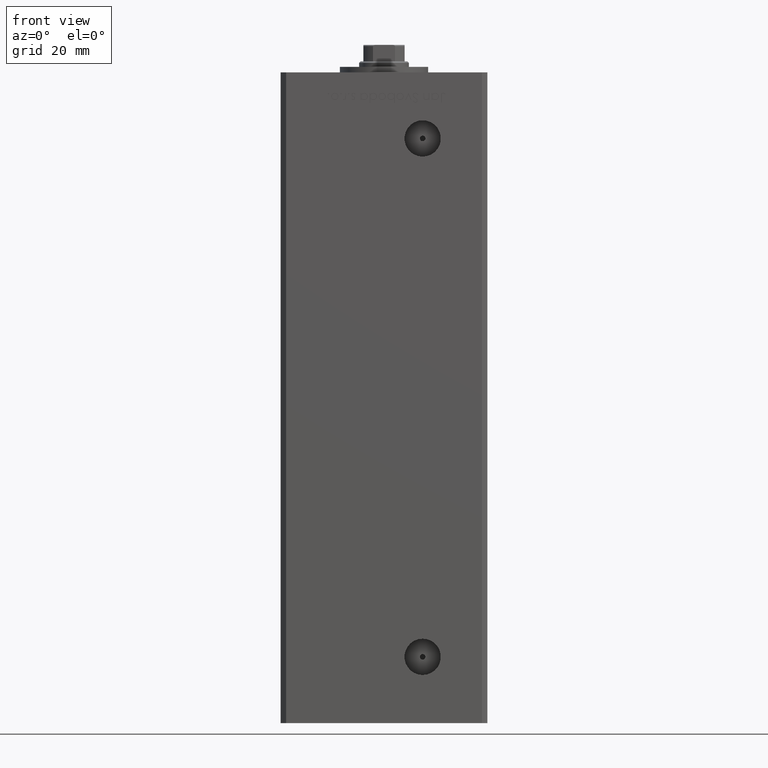
[diagram: clean part render]
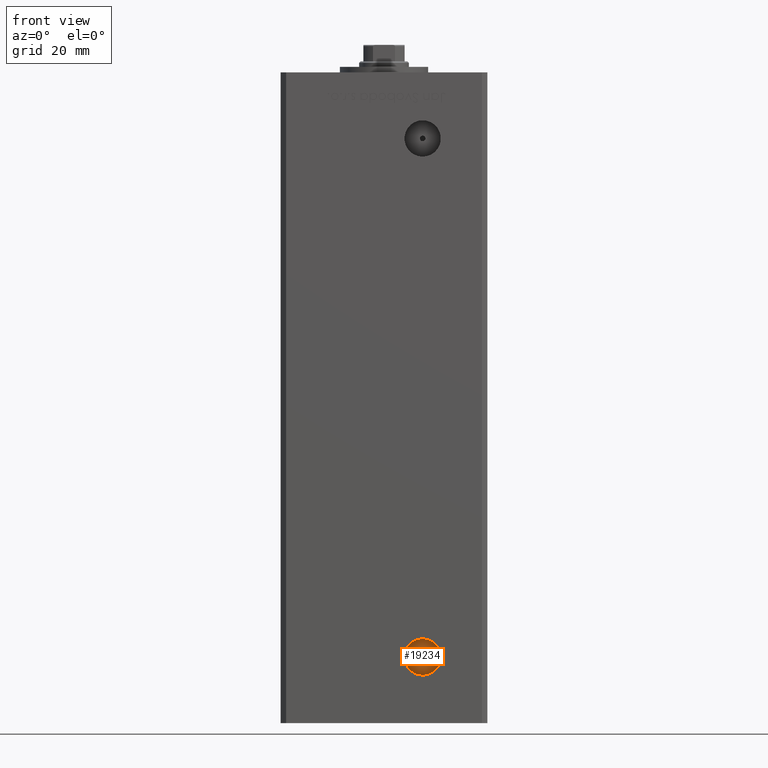
[diagram: same view with one face highlighted and labeled with its STEP entity id]
A machine part, front view. The second image highlights one B-rep face of the part: STEP entity #19234.
In plain terms, the highlighted planar face has unit normal (0, -1, 0).
Its self-contained STEP definition (entity closure, byte-faithful):
#1259 = FACE_BOUND ( 'NONE', #20379, .T. ) ;
#3245 = CARTESIAN_POINT ( 'NONE',  ( 13.99999999999999112, -19.50000000000000355, 9.000000000000007105 ) ) ;
#4855 = DIRECTION ( 'NONE',  ( 0.000000000000000000, -1.000000000000000000, 0.000000000000000000 ) ) ;
#5364 = CARTESIAN_POINT ( 'NONE',  ( 13.99999999999999112, -19.50000000000000355, 9.000000000000007105 ) ) ;
#6775 = DIRECTION ( 'NONE',  ( 0.000000000000000000, -1.000000000000000000, 0.000000000000000000 ) ) ;
#9882 = VERTEX_POINT ( 'NONE', #32319 ) ;
#10099 = ORIENTED_EDGE ( 'NONE', *, *, #23416, .F. ) ;
#11107 = VERTEX_POINT ( 'NONE', #44892 ) ;
#11277 = AXIS2_PLACEMENT_3D ( 'NONE', #3245, #15675, #35737 ) ;
#12533 = DIRECTION ( 'NONE',  ( 0.000000000000000000, 0.000000000000000000, -1.000000000000000000 ) ) ;
#13888 = ORIENTED_EDGE ( 'NONE', *, *, #15317, .T. ) ;
#15317 = EDGE_CURVE ( 'NONE', #37809, #20376, #33035, .T. ) ;
#15675 = DIRECTION ( 'NONE',  ( 0.000000000000000000, -1.000000000000000000, 0.000000000000000000 ) ) ;
#19234 = ADVANCED_FACE ( 'NONE', ( #1259, #40353 ), #20305, .T. ) ;
#19351 = CARTESIAN_POINT ( 'NONE',  ( 13.99999999999999112, -19.50000000000000355, 9.000000000000007105 ) ) ;
#20305 = PLANE ( 'NONE',  #36498 ) ;
#20376 = VERTEX_POINT ( 'NONE', #43829 ) ;
#20379 = EDGE_LOOP ( 'NONE', ( #10099, #31431 ) ) ;
#22899 = DIRECTION ( 'NONE',  ( 0.000000000000000000, 0.000000000000000000, -1.000000000000000000 ) ) ;
#23416 = EDGE_CURVE ( 'NONE', #9882, #11107, #42509, .T. ) ;
#24832 = EDGE_LOOP ( 'NONE', ( #47751, #13888 ) ) ;
#25550 = DIRECTION ( 'NONE',  ( 0.000000000000000000, -1.000000000000000000, 0.000000000000000000 ) ) ;
#25918 = EDGE_CURVE ( 'NONE', #20376, #37809, #27310, .T. ) ;
#27262 = CARTESIAN_POINT ( 'NONE',  ( 13.99999999999999112, -19.50000000000000355, 15.58000000000000718 ) ) ;
#27310 = CIRCLE ( 'NONE', #11277, 6.579999999999998295 ) ;
#31431 = ORIENTED_EDGE ( 'NONE', *, *, #43883, .F. ) ;
#32319 = CARTESIAN_POINT ( 'NONE',  ( 13.99999999999999112, -19.50000000000000355, 8.000000000000007105 ) ) ;
#33035 = CIRCLE ( 'NONE', #41456, 6.579999999999998295 ) ;
#34675 = DIRECTION ( 'NONE',  ( 0.000000000000000000, -1.000000000000000000, 0.000000000000000000 ) ) ;
#35724 = DIRECTION ( 'NONE',  ( 0.000000000000000000, 0.000000000000000000, -1.000000000000000000 ) ) ;
#35737 = DIRECTION ( 'NONE',  ( 0.000000000000000000, 0.000000000000000000, -1.000000000000000000 ) ) ;
#36405 = CARTESIAN_POINT ( 'NONE',  ( 13.99999999999999112, -19.50000000000000355, 9.000000000000007105 ) ) ;
#36498 = AXIS2_PLACEMENT_3D ( 'NONE', #36405, #25550, #50326 ) ;
#37809 = VERTEX_POINT ( 'NONE', #27262 ) ;
#40353 = FACE_OUTER_BOUND ( 'NONE', #24832, .T. ) ;
#41456 = AXIS2_PLACEMENT_3D ( 'NONE', #42944, #6775, #22899 ) ;
#42509 = CIRCLE ( 'NONE', #49227, 1.000000000000000888 ) ;
#42944 = CARTESIAN_POINT ( 'NONE',  ( 13.99999999999999112, -19.50000000000000355, 9.000000000000007105 ) ) ;
#43829 = CARTESIAN_POINT ( 'NONE',  ( 13.99999999999999112, -19.50000000000000355, 2.420000000000009699 ) ) ;
#43883 = EDGE_CURVE ( 'NONE', #11107, #9882, #44180, .T. ) ;
#44180 = CIRCLE ( 'NONE', #48349, 1.000000000000000888 ) ;
#44892 = CARTESIAN_POINT ( 'NONE',  ( 13.99999999999999112, -19.50000000000000355, 10.00000000000000888 ) ) ;
#47751 = ORIENTED_EDGE ( 'NONE', *, *, #25918, .T. ) ;
#48349 = AXIS2_PLACEMENT_3D ( 'NONE', #19351, #34675, #35724 ) ;
#49227 = AXIS2_PLACEMENT_3D ( 'NONE', #5364, #4855, #12533 ) ;
#50326 = DIRECTION ( 'NONE',  ( 0.000000000000000000, -0.000000000000000000, -1.000000000000000000 ) ) ;